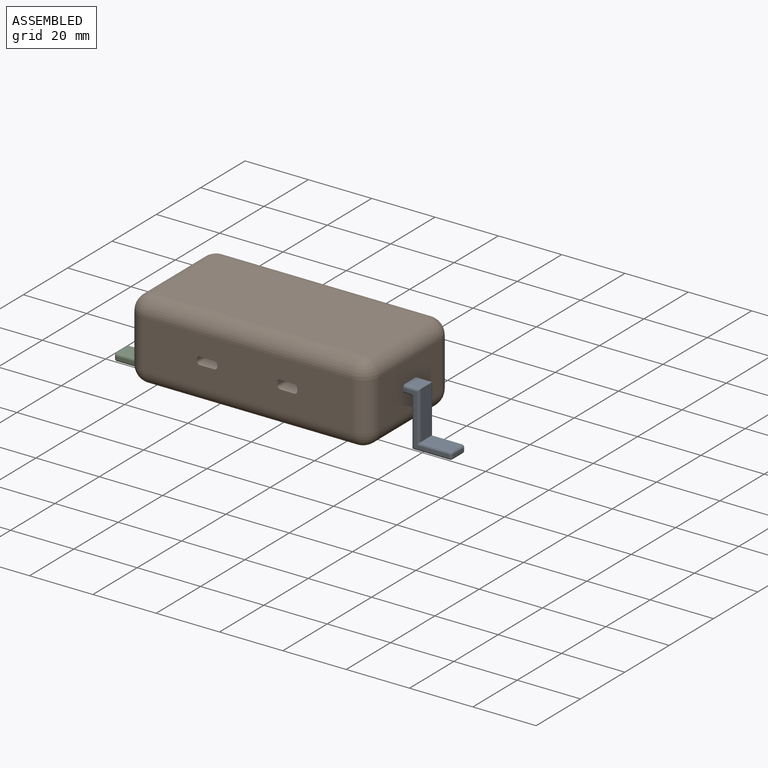
[diagram: assembled view]
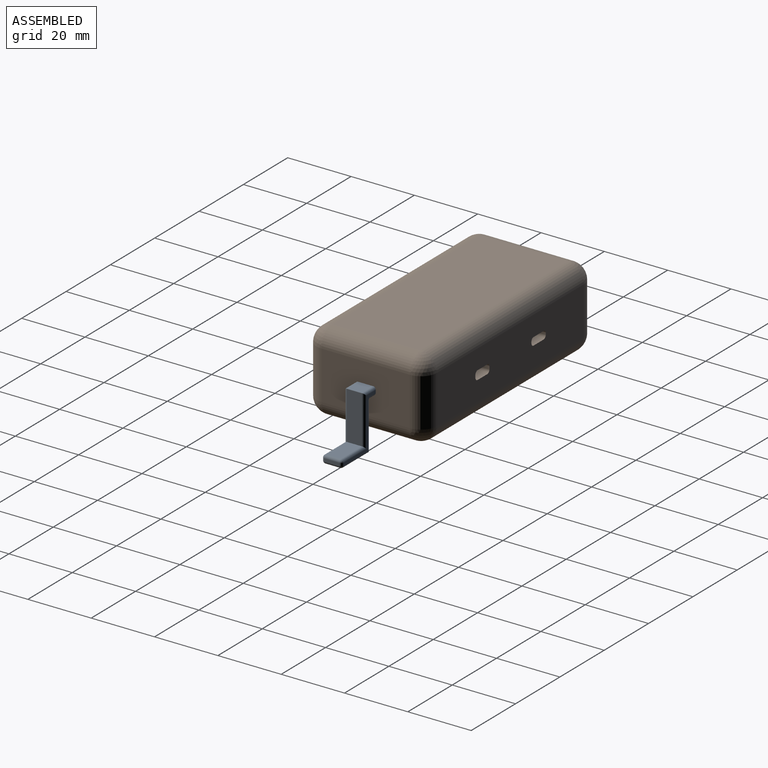
[diagram: assembled view, second angle]
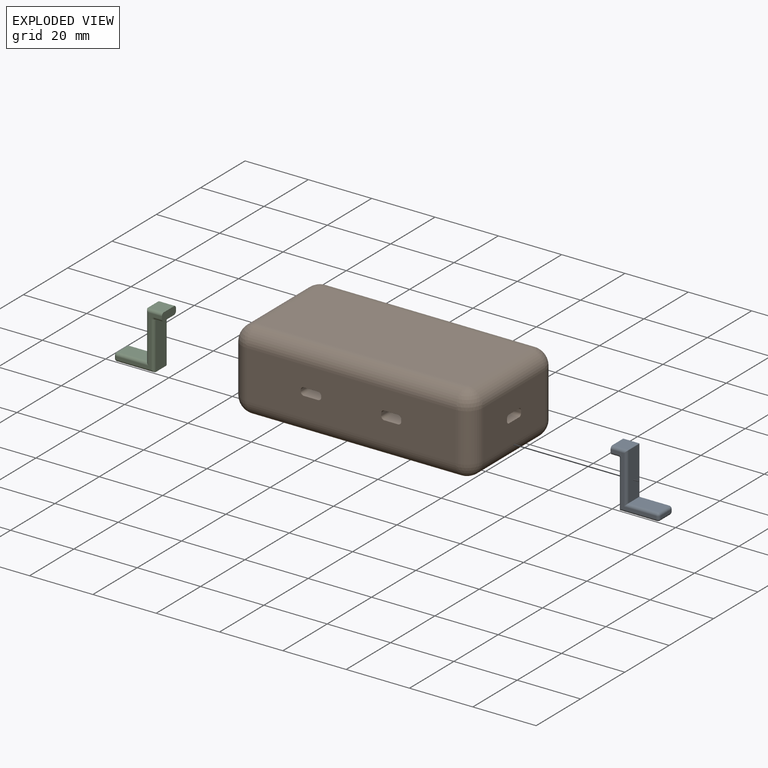
[diagram: exploded view]
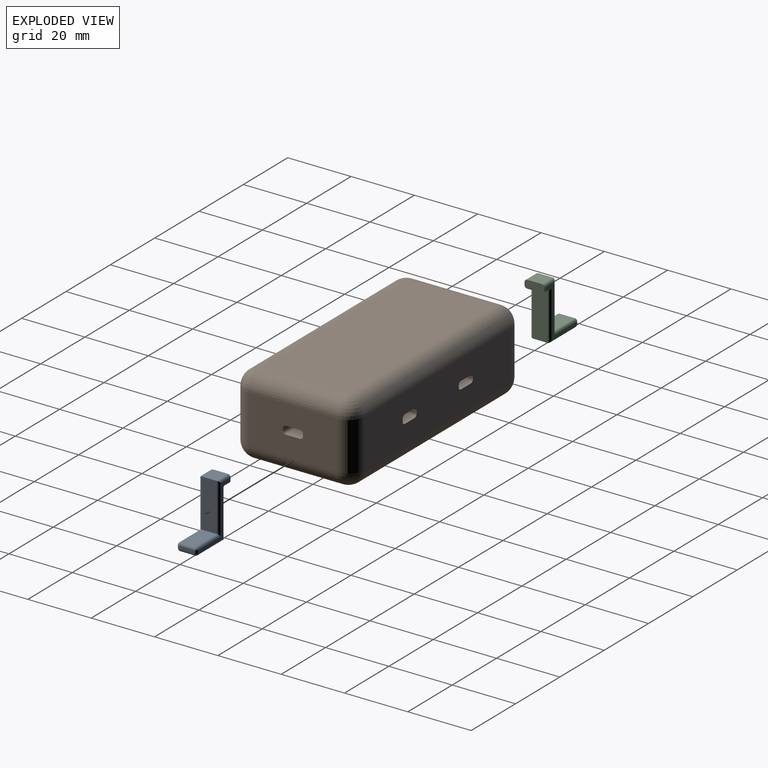
[diagram: exploded view, second angle]
ASSEMBLY  parts=3 mates=2
PART A: 39 faces, bbox 15.2x6.4x17.8 mm
  f0: plane 4.95x4.63mm, normal (0,0,1), area 22.9mm2, adj f1,f10,f13,f16
  f1: cylinder r=0.13mm len=4.63mm, axis (0,1,0), area 0.9mm2, adj f0,f2,f14,f19
  f2: plane 15.11x4.63mm, normal (-1,0,0), area 70mm2, adj f1,f3,f17,f22
  f3: plane 9.3x4.63mm, normal (0,0,1), area 43.1mm2, adj f2,f20,f26,f27
  f4: plane 4.63x0.82mm, normal (-1,0,0), area 3.8mm2, adj f27,f28,f34,f35
  f5: plane 11.71x4.63mm, normal (0,0,-1), area 54.3mm2, adj f6,f29,f35,f38
  f6: cylinder r=0.13mm len=4.63mm, axis (0,1,0), area 0.9mm2, adj f5,f7,f24,f36
  f7: plane 14.99x4.63mm, normal (1,0,0), area 69.4mm2, adj f6,f8,f21,f33
  f8: cylinder r=0.13mm len=4.63mm, axis (0,1,0), area 0.9mm2, adj f7,f9,f18,f30
  f9: plane 4.63x2.41mm, normal (0,0,-1), area 11.2mm2, adj f8,f10,f15,f25
  f10: plane 6.35x2.54mm, normal (1,0,0), area 15.5mm2, adj f0,f9,f11,f12,f13,f15,f16,f25
  f11: plane 16.06x14.38mm, normal (0,-1,0), area 24.6mm2, adj f10,f13,f15,f17,f18,f20,f21,f28
  f12: plane 16.06x14.38mm, normal (0,1,0), area 24.6mm2, adj f10,f16,f22,f25,f26,f30,f33,f34
  f13: cylinder r=0.86mm len=4.95mm, axis (1,0,0), area 6.3mm2, adj f0,f10,f11,f14
  f14: bspline ~0.99x0.86mm, area 0.2mm2, adj f1,f13,f17
  f15: cylinder r=0.86mm len=2.41mm, axis (-1,0,0), area 3.3mm2, adj f9,f10,f11,f18
  f16: cylinder r=0.86mm len=4.95mm, axis (-1,0,0), area 6.3mm2, adj f0,f10,f12,f19
  f17: cylinder r=0.86mm len=15.97mm, axis (0,0,1), area 20.4mm2, adj f2,f11,f14,f20
  f18: torus R=0.99mm, axis (0,-1,0), area 0.9mm2, adj f8,f11,f15,f21
  f19: bspline ~0.99x0.86mm, area 0.2mm2, adj f1,f16,f22
  f20: cylinder r=0.86mm len=10.16mm, axis (1,0,0), area 13mm2, adj f3,f11,f17,f23
  f21: cylinder r=0.86mm len=14.99mm, axis (0,0,-1), area 19.9mm2, adj f7,f11,f18,f24
  f22: cylinder r=0.86mm len=15.97mm, axis (0,0,-1), area 20.4mm2, adj f2,f12,f19,f26
  f23: sphere r=0.86mm, area 1.2mm2, adj f20,f27,f28
  f24: bspline ~0.99x0.86mm, area 0.2mm2, adj f6,f21,f29
  f25: cylinder r=0.86mm len=2.41mm, axis (1,0,0), area 3.3mm2, adj f9,f10,f12,f30
  f26: cylinder r=0.86mm len=10.16mm, axis (-1,0,0), area 13mm2, adj f3,f12,f22,f31
  f27: cylinder r=0.86mm len=4.63mm, axis (0,1,0), area 6.2mm2, adj f3,f4,f23,f31
  f28: cylinder r=0.86mm len=0.86mm, axis (0,0,1), area 1.1mm2, adj f4,f11,f23,f32
  f29: cylinder r=0.86mm len=11.71mm, axis (-1,0,0), area 15.4mm2, adj f5,f11,f24,f32
  f30: torus R=0.99mm, axis (0,-1,0), area 0.9mm2, adj f8,f12,f25,f33
  f31: sphere r=0.86mm, area 1.2mm2, adj f26,f27,f34
  f32: sphere r=0.86mm, area 1.2mm2, adj f28,f29,f35
  f33: cylinder r=0.86mm len=14.99mm, axis (0,0,1), area 19.9mm2, adj f7,f12,f30,f36
  f34: cylinder r=0.86mm len=0.86mm, axis (0,0,-1), area 1.1mm2, adj f4,f12,f31,f37
  f35: cylinder r=0.86mm len=4.63mm, axis (0,-1,0), area 6.2mm2, adj f4,f5,f32,f37
  f36: bspline ~0.99x0.86mm, area 0.2mm2, adj f6,f33,f38
  f37: sphere r=0.86mm, area 1.2mm2, adj f34,f35,f38
  f38: cylinder r=0.86mm len=11.71mm, axis (1,0,0), area 15.4mm2, adj f5,f12,f36,f37
PART B: 70 faces, bbox 76.2x38.1x25.4 mm
  f0: plane 27.94x15.24mm, normal (1,0,0), area 410.4mm2, adj f21,f30,f31,f35,f62,f63,f64,f65
  f1: plane 27.94x15.24mm, normal (-1,0,0), area 410.4mm2, adj f16,f19,f23,f24,f52,f53,f54,f55
  f2: plane 15.88x0.41mm, normal (1,0,0), area 6.5mm2, adj f9,f12,f37,f60
  f3: cylinder r=1.02mm len=16.48mm, axis (0,1,0), area 25.7mm2, adj f4,f13,f36,f54,f61
  f4: plane 16.48x4.44mm, normal (0,0,-1), area 73.2mm2, adj f3,f5,f13,f54
  f5: cylinder r=1.02mm len=16.48mm, axis (0,1,0), area 25.7mm2, adj f4,f13,f40,f54,f59
  f6: plane 15.88x0.41mm, normal (-1,0,0), area 6.5mm2, adj f7,f12,f39,f58
  f7: cylinder r=1.02mm len=16.48mm, axis (0,1,0), area 25.7mm2, adj f6,f12,f42,f56,f58
  f8: plane 16.48x4.44mm, normal (0,0,1), area 73.2mm2, adj f13,f41,f43,f55
  f9: cylinder r=1.02mm len=16.48mm, axis (0,1,0), area 25.7mm2, adj f2,f12,f42,f56,f60
  f10: plane 15.88x0.77mm, normal (1,0,0), area 12.2mm2, adj f13,f45,f51,f54,f55,f59
  f11: plane 15.88x0.77mm, normal (-1,0,0), area 12.2mm2, adj f13,f47,f49,f63,f64,f68
  f12: plane 66.04x15.24mm, normal (0,-1,0), area 974.7mm2, adj f2,f6,f7,f9,f24,f29,f32,f35
  f13: plane 66.04x15.24mm, normal (0,1,0), area 974.7mm2, adj f3,f4,f5,f8,f10,f11,f16,f20
  f14: plane 66.04x27.94mm, normal (0,0,1), area 1845.2mm2, adj f19,f20,f29,f30
  f15: plane 66.04x27.94mm, normal (0,0,-1), area 1845.2mm2, adj f22,f23,f31,f32
  f16: cylinder r=5.08mm len=15.24mm, axis (0,0,1), area 121.6mm2, adj f1,f13,f17,f18
  f17: sphere r=5.08mm, area 40.5mm2, adj f16,f19,f20
  f18: sphere r=5.08mm, area 40.5mm2, adj f16,f22,f23
  f19: cylinder r=5.08mm len=27.94mm, axis (0,1,0), area 223mm2, adj f1,f14,f17,f25
  f20: cylinder r=5.08mm len=66.04mm, axis (1,0,0), area 527mm2, adj f13,f14,f17,f26
  f21: cylinder r=5.08mm len=15.24mm, axis (0,0,-1), area 121.6mm2, adj f0,f13,f26,f27
  f22: cylinder r=5.08mm len=66.04mm, axis (-1,0,0), area 527mm2, adj f13,f15,f18,f27
  f23: cylinder r=5.08mm len=27.94mm, axis (0,-1,0), area 223mm2, adj f1,f15,f18,f28
  f24: cylinder r=5.08mm len=15.24mm, axis (0,0,-1), area 121.6mm2, adj f1,f12,f25,f28
  f25: sphere r=5.08mm, area 40.5mm2, adj f19,f24,f29
  f26: sphere r=5.08mm, area 40.5mm2, adj f20,f21,f30
  f27: sphere r=5.08mm, area 40.5mm2, adj f21,f22,f31
  f28: sphere r=5.08mm, area 40.5mm2, adj f23,f24,f32
  f29: cylinder r=5.08mm len=66.04mm, axis (-1,0,0), area 527mm2, adj f12,f14,f25,f33
  f30: cylinder r=5.08mm len=27.94mm, axis (0,-1,0), area 223mm2, adj f0,f14,f26,f33
  f31: cylinder r=5.08mm len=27.94mm, axis (0,1,0), area 223mm2, adj f0,f15,f27,f34
  f32: cylinder r=5.08mm len=66.04mm, axis (1,0,0), area 527mm2, adj f12,f15,f28,f34
  f33: sphere r=5.08mm, area 40.5mm2, adj f29,f30,f35
  f34: sphere r=5.08mm, area 40.5mm2, adj f31,f32,f35
  f35: cylinder r=5.08mm len=15.24mm, axis (0,0,1), area 121.6mm2, adj f0,f12,f33,f34
  f36: plane 15.88x0.41mm, normal (1,0,0), area 6.5mm2, adj f3,f13,f43,f61
  f37: cylinder r=1.02mm len=16.48mm, axis (0,1,0), area 25.7mm2, adj f2,f12,f38,f52,f60
  f38: plane 16.48x4.44mm, normal (0,0,-1), area 73.2mm2, adj f12,f37,f39,f52
  f39: cylinder r=1.02mm len=16.48mm, axis (0,1,0), area 25.7mm2, adj f6,f12,f38,f52,f58
  f40: plane 15.88x0.41mm, normal (-1,0,0), area 6.5mm2, adj f5,f13,f41,f59
  f41: cylinder r=1.02mm len=16.48mm, axis (0,1,0), area 25.7mm2, adj f8,f13,f40,f55,f59
  f42: plane 16.48x4.44mm, normal (0,0,1), area 73.2mm2, adj f7,f9,f12,f56
  f43: cylinder r=1.02mm len=16.48mm, axis (0,1,0), area 25.7mm2, adj f8,f13,f36,f55,f61
  f44: plane 15.88x0.77mm, normal (1,0,0), area 12.2mm2, adj f12,f45,f51,f52,f56,f58
  f45: cylinder r=1.02mm len=38.1mm, axis (0,1,0), area 54.5mm2, adj f10,f12,f13,f44,f46,f52,f53,f54
  f46: plane 38.1x4.3mm, normal (0,0,-1), area 163.9mm2, adj f12,f13,f45,f47
  f47: cylinder r=1.02mm len=38.1mm, axis (0,1,0), area 54.5mm2, adj f11,f12,f13,f46,f48,f62,f64,f65
  f48: plane 15.88x0.77mm, normal (-1,0,0), area 12.2mm2, adj f12,f47,f49,f65,f66,f69
  f49: cylinder r=1.02mm len=38.1mm, axis (0,1,0), area 54.5mm2, adj f11,f12,f13,f48,f50,f67,f68,f69
  f50: plane 38.1x4.3mm, normal (0,0,1), area 163.9mm2, adj f12,f13,f49,f51
  f51: cylinder r=1.02mm len=38.1mm, axis (0,1,0), area 54.5mm2, adj f10,f12,f13,f44,f50,f55,f56,f57
  f52: cylinder r=0.89mm len=48.09mm, axis (1,0,0), area 60.4mm2, adj f1,f37,f38,f39,f44,f45,f53,f58
  f53: plane 48.09x4.57mm, normal (0,0,-1), area 219.9mm2, adj f1,f45,f52,f54
  f54: cylinder r=0.89mm len=48.09mm, axis (1,0,0), area 60.4mm2, adj f1,f3,f4,f5,f10,f45,f53,f59
  f55: cylinder r=0.89mm len=48.09mm, axis (1,0,0), area 60.4mm2, adj f1,f8,f10,f41,f43,f51,f57,f59
  f56: cylinder r=0.89mm len=48.09mm, axis (1,0,0), area 60.4mm2, adj f1,f7,f9,f42,f44,f51,f57,f58
  f57: plane 48.09x4.57mm, normal (0,0,1), area 219.9mm2, adj f1,f51,f55,f56
  f58: plane 18.95x0.76mm, normal (0,1,0), area 14.4mm2, adj f6,f7,f39,f44,f52,f56
  f59: plane 18.95x0.76mm, normal (0,-1,0), area 14.4mm2, adj f5,f10,f40,f41,f54,f55
  f60: plane 22.18x0.76mm, normal (0,1,0), area 16.9mm2, adj f1,f2,f9,f37,f52,f56
  f61: plane 22.18x0.76mm, normal (0,-1,0), area 16.9mm2, adj f1,f3,f36,f43,f54,f55
  f62: plane 22.81x4.57mm, normal (0,0,-1), area 104.3mm2, adj f0,f47,f64,f65
  f63: plane 22.29x0.76mm, normal (0,-1,0), area 17mm2, adj f0,f11,f64,f68
  f64: cylinder r=0.89mm len=22.81mm, axis (1,0,0), area 31.5mm2, adj f0,f11,f47,f62,f63
  f65: cylinder r=0.89mm len=22.81mm, axis (1,0,0), area 31.5mm2, adj f0,f47,f48,f62,f66
  f66: plane 22.29x0.76mm, normal (0,1,0), area 17mm2, adj f0,f48,f65,f69
  f67: plane 22.81x4.57mm, normal (0,0,1), area 104.3mm2, adj f0,f49,f68,f69
  f68: cylinder r=0.89mm len=22.81mm, axis (1,0,0), area 31.5mm2, adj f0,f11,f49,f63,f67
  f69: cylinder r=0.89mm len=22.81mm, axis (1,0,0), area 31.5mm2, adj f0,f48,f49,f66,f67
PART C: same geometry as A
PLACE A rot(axis=(0,0,1),180deg) t=(76.2,0,1.27)mm
PLACE B t=(38.1,0,2.54)mm fixed
PLACE C t=(0,0,1.27)mm
MATE fastened B.f1 <-> C.f10  axis (-1,0,0) through (0,0,2.54)mm
MATE fastened B.f0 <-> A.f10  axis (1,0,0) through (76.2,0,2.54)mm
